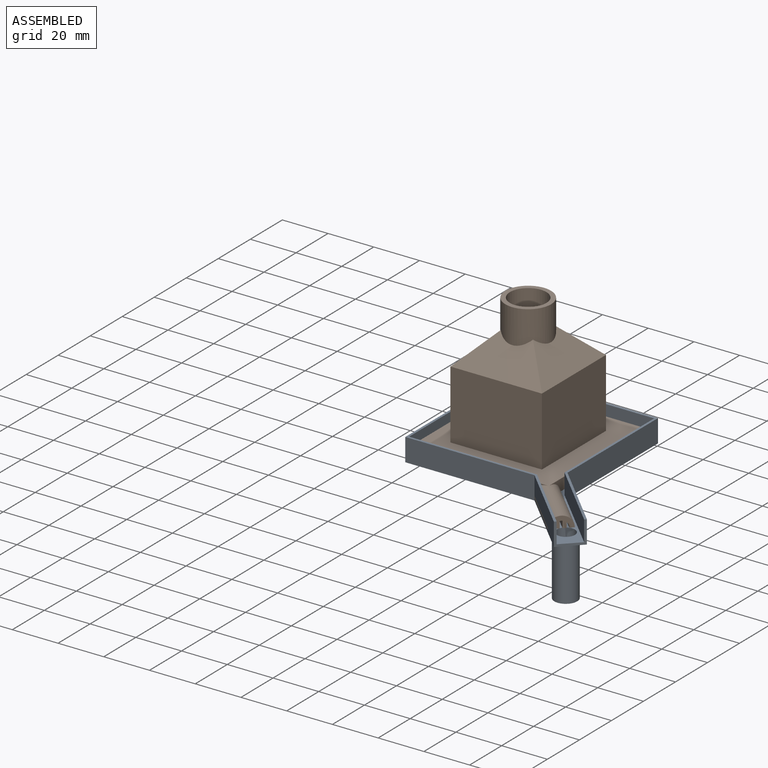
[diagram: assembled view]
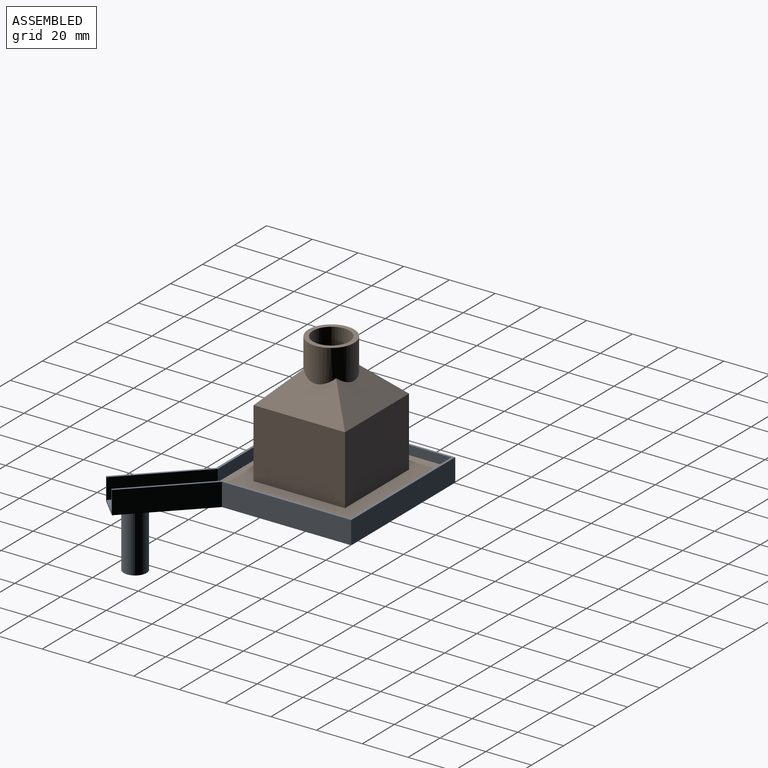
[diagram: assembled view, second angle]
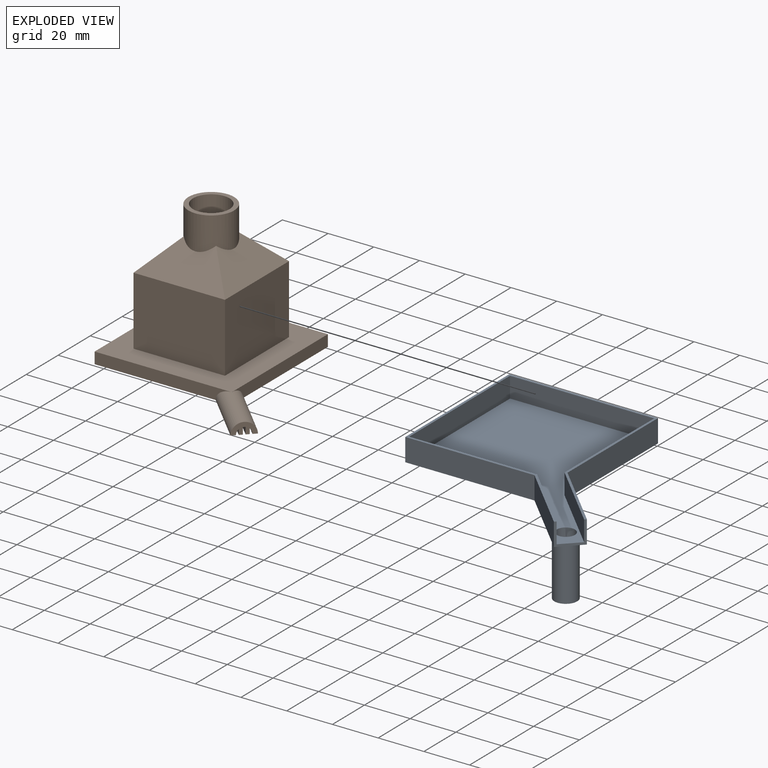
[diagram: exploded view]
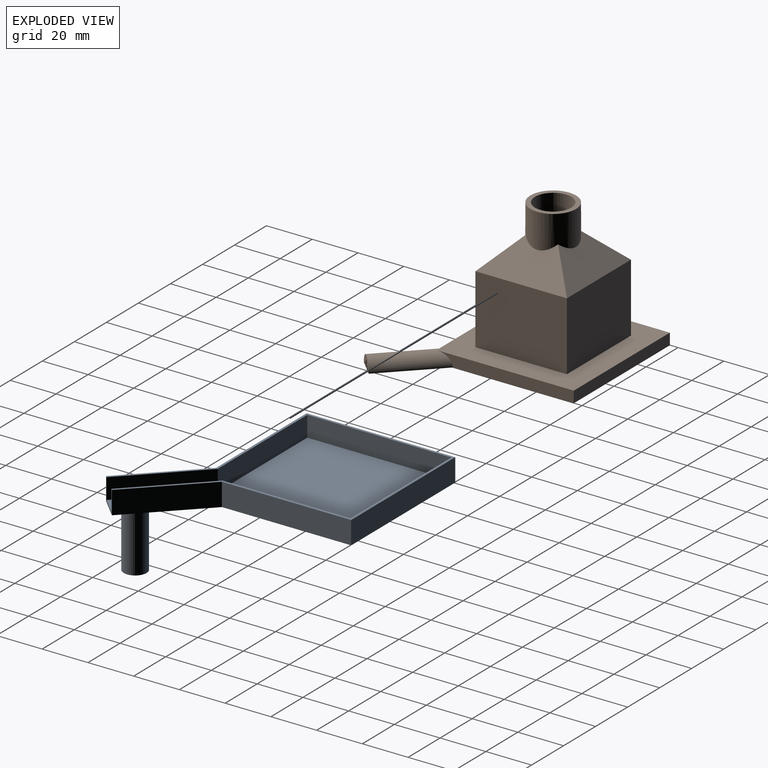
[diagram: exploded view, second angle]
ASSEMBLY  parts=2 mates=2
PART A: 20 faces, bbox 93.3x93.3x35 mm
  f0: plane 93.31x93.31mm, normal (0,0,1), area 320.9mm2, adj f1,f2,f3,f4,f5,f7,f8,f9
  f1: plane 55.93x9mm, normal (-1,0,0), area 503.4mm2, adj f0,f7,f10,f11
  f2: plane 56.51x10mm, normal (0,-1,0), area 565.1mm2, adj f0,f5,f6,f15
  f3: plane 56.51x10mm, normal (1,0,0), area 565.1mm2, adj f0,f4,f6,f14
  f4: plane 65x10mm, normal (0,1,0), area 650mm2, adj f0,f3,f5,f6
  f5: plane 65x10mm, normal (-1,0,0), area 650mm2, adj f0,f2,f4,f6
  f6: plane 93.31x93.31mm, normal (0,0,-1), area 4590.9mm2, adj f2,f3,f4,f5,f13,f14,f15,f16
  f7: plane 63x9mm, normal (0,-1,0), area 567mm2, adj f0,f1,f8,f10
  f8: plane 63x9mm, normal (1,0,0), area 567mm2, adj f0,f7,f9,f10
  f9: plane 55.93x9mm, normal (0,1,0), area 503.4mm2, adj f0,f8,f10,f12
  f10: plane 91.6x91.6mm, normal (0,0,1), area 4298.3mm2, adj f1,f7,f8,f9,f11,f12,f13,f18
  f11: plane 28.6x28.6mm, normal (-0.71,-0.71,0), area 364.1mm2, adj f0,f1,f10,f13
  f12: plane 28.6x28.6mm, normal (0.71,0.71,0), area 364.1mm2, adj f0,f9,f10,f13
  f13: plane 10x8.49mm, normal (0.71,-0.71,0), area 30mm2, adj f0,f6,f10,f11,f12,f14,f15
  f14: plane 28.31x28.31mm, normal (0.71,0.71,0), area 400.4mm2, adj f0,f3,f6,f13
  f15: plane 28.31x28.31mm, normal (-0.71,-0.71,0), area 400.4mm2, adj f0,f2,f6,f13
  f16: cylinder r=5mm len=25mm, axis (0,0,1), area 785.4mm2, adj f6,f17
  f17: plane 10x10mm, normal (0,0,-1), area 78.5mm2, adj f16
  f18: cylinder r=4mm len=23.5mm, axis (0,0,-1), area 590.6mm2, adj f10,f19
  f19: plane 8x8mm, normal (0,0,1), area 50.3mm2, adj f18
PART B: 51 faces, bbox 81.6x81.6x60 mm
  f0: plane 53.17x3mm, normal (0,1,0), area 157.3mm2, adj f2,f3,f7,f24,f43
  f1: plane 0.71x0.04mm, normal (-1,0,0), area 0mm2, adj f4,f27,f49
  f2: plane 56x56mm, normal (0,0,-1), area 214.3mm2, adj f0,f23,f24,f26,f43,f44,f45,f46
  f3: cylinder r=3mm len=22.91mm, axis (-0.71,0.71,0), area 78.4mm2, adj f0,f7,f37,f43
  f4: cylinder r=3mm len=21.14mm, axis (-0.71,0.71,0), area 28.8mm2, adj f1,f25,f37,f42,f49
  f5: plane 60x5mm, normal (0,-1,0), area 272.2mm2, adj f7,f11,f12,f35
  f6: plane 60x5mm, normal (1,0,0), area 272.2mm2, adj f7,f10,f12,f35
  f7: plane 81.62x81.62mm, normal (0,0,-1), area 565.3mm2, adj f0,f3,f5,f6,f10,f11,f23,f24
  f8: plane 40x30mm, normal (-1,0,0), area 1200mm2, adj f12,f13,f14,f18
  f9: plane 40x30mm, normal (1,0,0), area 1200mm2, adj f12,f13,f14,f17
  f10: plane 60x5mm, normal (0,1,0), area 300mm2, adj f6,f7,f11,f12
  f11: plane 60x5mm, normal (-1,0,0), area 300mm2, adj f5,f7,f10,f12
  f12: plane 60x60mm, normal (0,0,1), area 2000mm2, adj f5,f6,f8,f9,f10,f11,f13,f14
  f13: plane 40x30mm, normal (0,-1,0), area 1200mm2, adj f8,f9,f12,f16
  f14: plane 40x30mm, normal (0,1,0), area 1200mm2, adj f8,f9,f12,f15
  f15: plane 40x12.93mm, normal (0,0.71,0.71), area 454.6mm2, adj f14,f17,f18,f19
  f16: plane 40x12.93mm, normal (0,-0.71,0.71), area 454.6mm2, adj f13,f17,f18,f19
  f17: plane 40x12.93mm, normal (0.71,0,0.71), area 454.6mm2, adj f9,f15,f16,f19
  f18: plane 40x12.93mm, normal (-0.71,0,0.71), area 454.6mm2, adj f8,f15,f16,f19
  f19: cylinder r=10mm len=20mm, axis (0,0,1), area 879.8mm2, adj f15,f16,f17,f18,f20
  f20: plane 20x20mm, normal (0,0,1), area 113.1mm2, adj f19,f34
  f21: plane 36x31.17mm, normal (1,0,0), area 1122.2mm2, adj f27,f28,f29,f33
  f22: plane 36x31.17mm, normal (-1,0,0), area 1122.2mm2, adj f27,f28,f29,f32
  f23: plane 56x3mm, normal (0,-1,0), area 168mm2, adj f2,f7,f24,f26
  f24: plane 56x3mm, normal (1,0,0), area 168mm2, adj f0,f2,f7,f23
  f25: plane 0.71x0.04mm, normal (0,1,0), area 0mm2, adj f4,f27,f42
  f26: plane 53.17x3mm, normal (-1,0,0), area 157.3mm2, adj f2,f7,f23,f36,f50
  f27: plane 53.5x53.5mm, normal (0,0,-1), area 1308.5mm2, adj f1,f21,f22,f25,f28,f29,f38,f39
  f28: plane 36x31.17mm, normal (0,1,0), area 1122.2mm2, adj f21,f22,f27,f31
  f29: plane 36x31.17mm, normal (0,-1,0), area 1122.2mm2, adj f21,f22,f27,f30
  f30: plane 36x12.34mm, normal (0,-0.71,-0.71), area 387.1mm2, adj f29,f32,f33,f34
  f31: plane 36x12.34mm, normal (0,0.71,-0.71), area 387.1mm2, adj f28,f32,f33,f34
  f32: plane 36x12.34mm, normal (-0.71,0,-0.71), area 387.1mm2, adj f22,f30,f31,f34
  f33: plane 36x12.34mm, normal (0.71,0,-0.71), area 387.1mm2, adj f21,f30,f31,f34
  f34: cylinder r=8mm len=16mm, axis (0,0,1), area 755.5mm2, adj f20,f30,f31,f32,f33
  f35: cylinder r=5mm len=28.69mm, axis (-0.71,0.71,0), area 451.7mm2, adj f5,f6,f7,f37
  f36: cylinder r=3mm len=22.91mm, axis (-0.71,0.71,0), area 78.4mm2, adj f7,f26,f37,f50
  f37: plane 7.07x7.07mm, normal (0.71,-0.71,0), area 33.2mm2, adj f3,f4,f7,f35,f36,f42,f43,f48
  f38: plane 50.29x3mm, normal (-1,0,0), area 150.9mm2, adj f27,f39,f48,f49
  f39: plane 51x3mm, normal (0,-1,0), area 153mm2, adj f27,f38,f40,f48
  f40: plane 51x3mm, normal (1,0,0), area 153mm2, adj f27,f39,f41,f48
  f41: plane 50.29x3mm, normal (0,1,0), area 150.9mm2, adj f27,f40,f42,f48
  f42: plane 22.94x22.94mm, normal (0.71,0.71,0), area 96.1mm2, adj f4,f25,f27,f37,f41,f48
  f43: plane 22.5x22.5mm, normal (-0.71,-0.71,0), area 72.2mm2, adj f0,f2,f3,f37,f44,f48
  f44: plane 51.17x3mm, normal (0,-1,0), area 153.5mm2, adj f2,f43,f45,f48
  f45: plane 54x3mm, normal (-1,0,0), area 162mm2, adj f2,f44,f46,f48
  f46: plane 54x3mm, normal (0,1,0), area 162mm2, adj f2,f45,f47,f48
  f47: plane 51.17x3mm, normal (1,0,0), area 153.5mm2, adj f2,f46,f48,f50
  f48: plane 76.5x76.5mm, normal (0,0,-1), area 406.1mm2, adj f37,f38,f39,f40,f41,f42,f43,f44
  f49: plane 22.94x22.94mm, normal (-0.71,-0.71,0), area 96.1mm2, adj f1,f4,f27,f37,f38,f48
  f50: plane 22.5x22.5mm, normal (0.71,0.71,0), area 72.2mm2, adj f2,f26,f36,f37,f47,f48
PLACE A t=(0.09,1.41,2.75)mm
PLACE B t=(-1.41,1.41,3.75)mm
MATE planar B.f11 <-> A.f8  axis (-1,0,0) through (-31.41,1.41,6.25)mm
MATE planar B.f7 <-> A.f10  axis (0,0,-1) through (-29.41,29.41,3.75)mm
